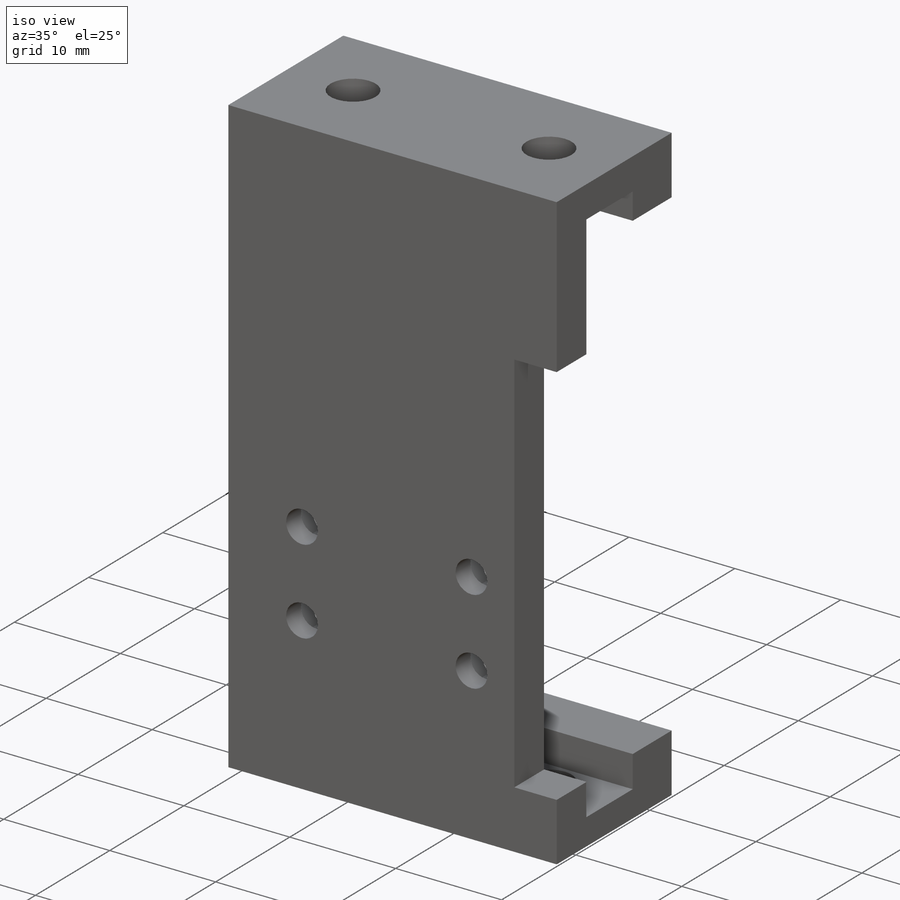
[diagram: iso view]
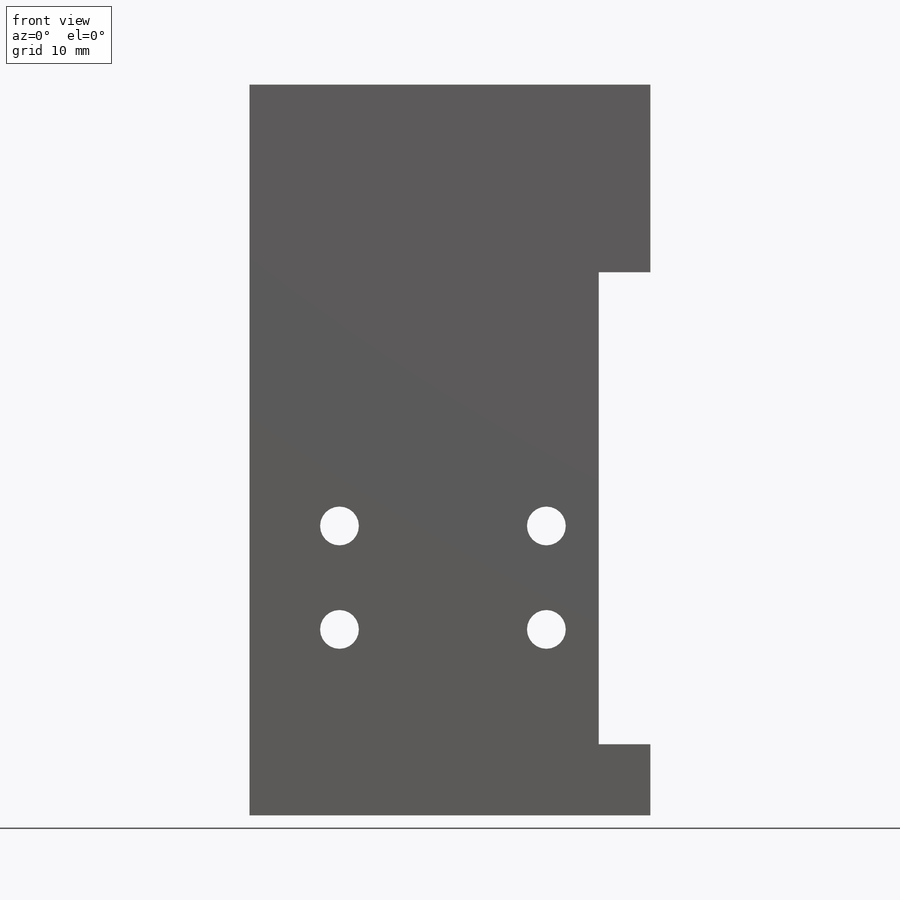
[diagram: front view]
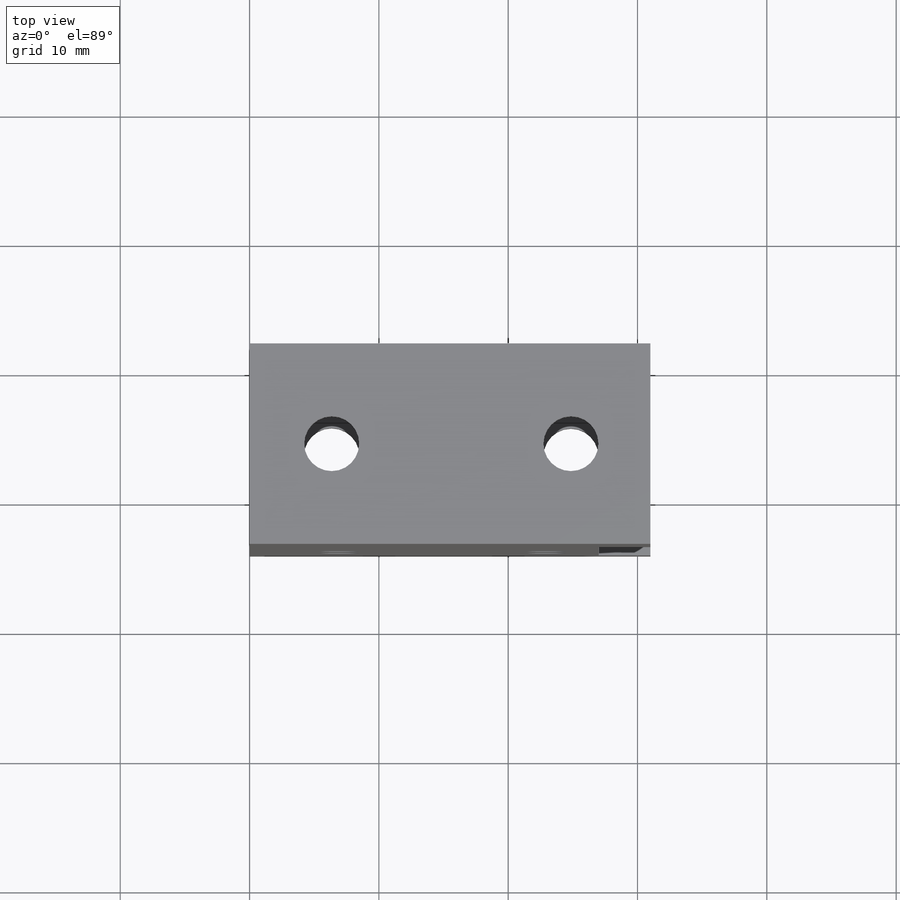
[diagram: top view]
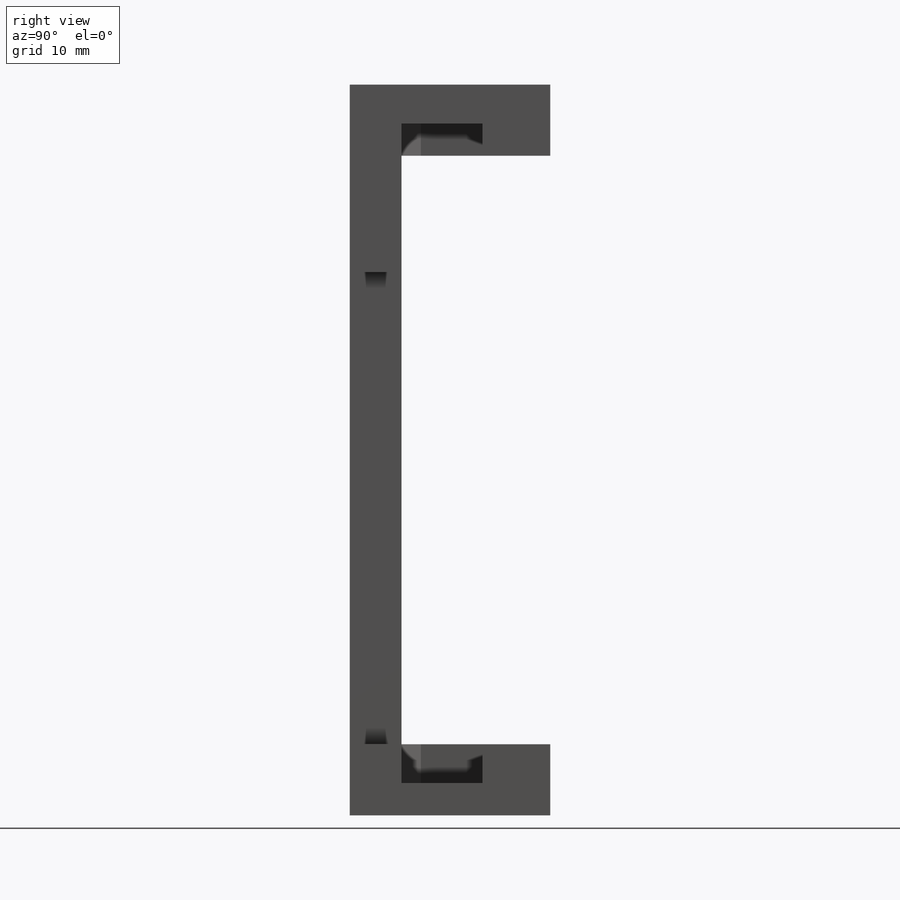
[diagram: right view]
SOLIDWORKS PART (.sldprt)
format: sldprt  version: not decoded by parser v0  size: 340,992 bytes
history: native  units: mm
features: sketch x7, extrude x5, material x1, cut_extrude x1 (+13 scaffold rows collapsed)
feature tree (27):
  scaffold x13  (default folders/planes/origin — collapsed)
  material  "Material <not specified>"
  sketch  "Sketch1"  dims[c1.D1=4.2mm c1.D4=9.0mm c1.D2=3.0mm c1.D3=3.0mm c2.D4=3.0mm c2.D5=3.0mm c2.D6=3.0mm c2.D2=27.0mm c2.D7=51.0mm c2.D8=36.5mm c2.D9=~13.804213mm c2.D10=5.5mm c3.D9=4.0mm]
  extrude  "Boss-Extrude1"  Depth=4mm
  sketch  "Sketch2"  dims[D1=3.0mm D2=3.0mm D3=3.0mm D4=3.0mm D5=3.0mm D6=27.0mm D7=53.0mm D8=36.5mm]
  extrude  "Boss-Extrude2"  Depth=2mm
  sketch  "Sketch3"  dims[D1=0.25mm]
  extrude  "Boss-Extrude3"  Depth=5.5mm
  sketch  "Sketch4"  dims[D1=4.25mm D2=4.25mm]
  extrude  "Boss-Extrude4"  Depth=3mm
  sketch  "Sketch5"
  sketch  "Sketch6"
  extrude  "Boss-Extrude5"  Depth=5.5mm
  sketch  "Sketch7"
  cut_extrude  "Cut-Extrude4"  Depth=3mm
decode coverage: 10 of 13 modeling features carry decoded parameters
note: ~ marks probable driven/reference dimensions
note: suppression state not decoded; provenance and decode notes live in map.json
